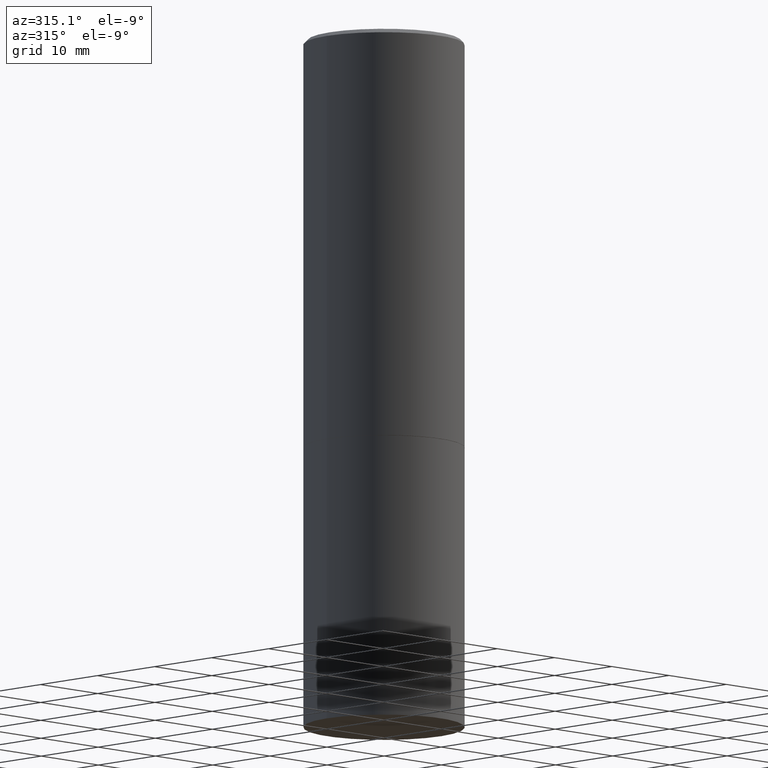
[diagram: clean part render]
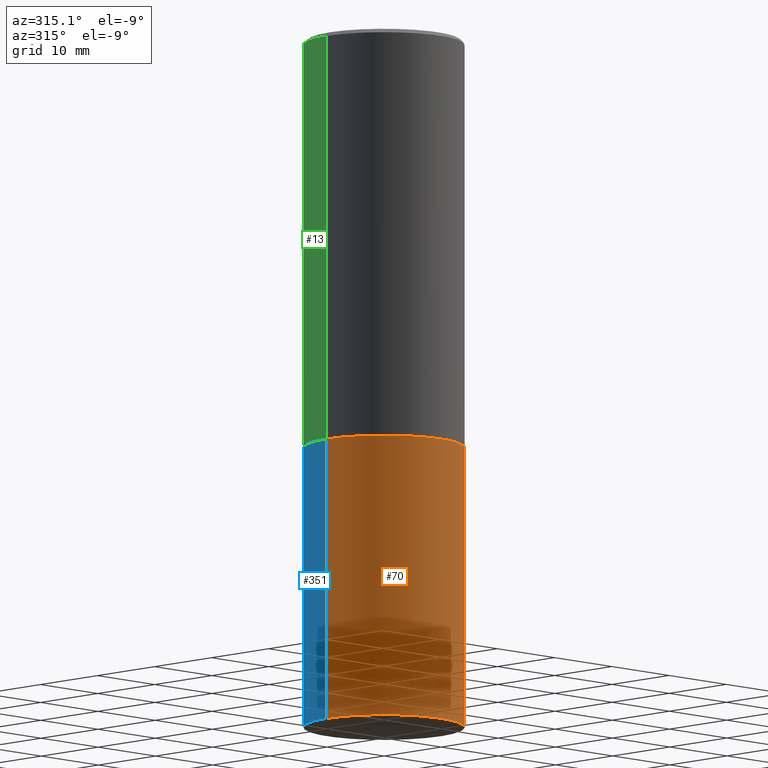
[diagram: same view with three faces highlighted in distinct colors, each labeled with its STEP entity id]
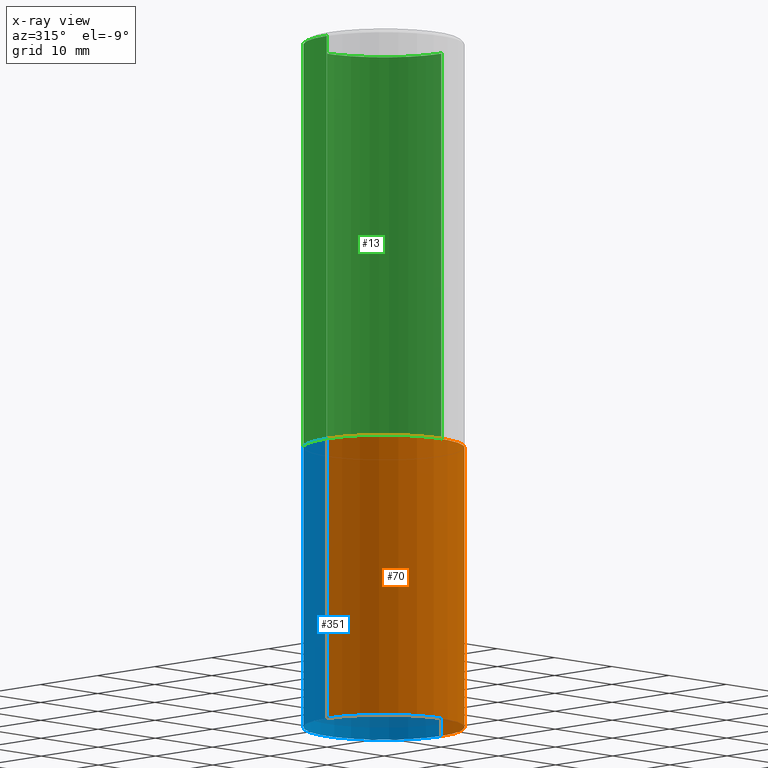
[diagram: x-ray of the same camera — body ghosted, the three highlighted faces saturated]
A machine part, auxiliary view with three faces highlighted in distinct colors.
The next image is the same camera in x-ray (body ghosted, the three faces saturated) — at least one of them is partly hidden behind the body in this view.
Their STEP definitions:

[orange] entity #70 — the highlighted cylindrical surface (partial cylindrical patch) has radius 10 mm, axis along (-0, 0, 1).
#1 = VERTEX_POINT ( 'NONE', #161 ) ;
#6 = DIRECTION ( 'NONE',  ( -2.445468806185136597E-29, 3.491481338843145583E-15, 1.000000000000000000 ) ) ;
#20 = CARTESIAN_POINT ( 'NONE',  ( -0.3937000000000000499, -6.618420123904681571E-15, -2.007800000000000473 ) ) ;
#26 = DIRECTION ( 'NONE',  ( 1.000000000000000000, -6.982962677686265133E-15, 0.000000000000000000 ) ) ;
#27 = AXIS2_PLACEMENT_3D ( 'NONE', #166, #110, #26 ) ;
#36 = ORIENTED_EDGE ( 'NONE', *, *, #187, .F. ) ;
#47 = CARTESIAN_POINT ( 'NONE',  ( 0.3937000000000000499, -2.749192406205083217E-15, 1.919750796630860172E-29 ) ) ;
#50 = VECTOR ( 'NONE', #194, 39.37007874015748143 ) ;
#70 = ADVANCED_FACE ( 'NONE', ( #312 ), #151, .T. ) ;
#73 = VERTEX_POINT ( 'NONE', #125 ) ;
#79 = CARTESIAN_POINT ( 'NONE',  ( 0.000000000000000000, 0.000000000000000000, 0.000000000000000000 ) ) ;
#86 = VERTEX_POINT ( 'NONE', #354 ) ;
#104 = ORIENTED_EDGE ( 'NONE', *, *, #359, .T. ) ;
#106 = EDGE_LOOP ( 'NONE', ( #36, #272, #104, #244 ) ) ;
#107 = CIRCLE ( 'NONE', #27, 0.3937000000000000499 ) ;
#110 = DIRECTION ( 'NONE',  ( -2.445468806185136597E-29, 3.491481338843145583E-15, 1.000000000000000000 ) ) ;
#125 = CARTESIAN_POINT ( 'NONE',  ( 0.3937000000000000499, -9.759388638334352204E-15, -2.007800000000000473 ) ) ;
#151 = CYLINDRICAL_SURFACE ( 'NONE', #349, 0.3937000000000000499 ) ;
#161 = CARTESIAN_POINT ( 'NONE',  ( 0.3937000000000000499, -1.457064992326020852E-14, -3.385800000000000143 ) ) ;
#166 = CARTESIAN_POINT ( 'NONE',  ( 4.910012269058518206E-29, -7.010196232129268988E-15, -2.007800000000000473 ) ) ;
#170 = LINE ( 'NONE', #47, #50 ) ;
#179 = CIRCLE ( 'NONE', #186, 0.3937000000000000499 ) ;
#182 = CARTESIAN_POINT ( 'NONE',  ( -0.3937000000000000499, 2.797406750687514786E-15, -1.936584745033356735E-29 ) ) ;
#186 = AXIS2_PLACEMENT_3D ( 'NONE', #220, #6, #346 ) ;
#187 = EDGE_CURVE ( 'NONE', #86, #211, #297, .T. ) ;
#194 = DIRECTION ( 'NONE',  ( -2.445468806185136877E-29, 3.491481338843145188E-15, 1.000000000000000000 ) ) ;
#196 = VECTOR ( 'NONE', #331, 39.37007874015748143 ) ;
#211 = VERTEX_POINT ( 'NONE', #20 ) ;
#220 = CARTESIAN_POINT ( 'NONE',  ( 8.279868283981636714E-29, -1.182145751705512373E-14, -3.385800000000000143 ) ) ;
#233 = DIRECTION ( 'NONE',  ( 1.000000000000000000, -6.982962677686265922E-15, 4.876176775795935793E-29 ) ) ;
#243 = EDGE_CURVE ( 'NONE', #86, #1, #179, .T. ) ;
#244 = ORIENTED_EDGE ( 'NONE', *, *, #290, .F. ) ;
#271 = DIRECTION ( 'NONE',  ( -2.445468806185136597E-29, 3.491481338843145583E-15, 1.000000000000000000 ) ) ;
#272 = ORIENTED_EDGE ( 'NONE', *, *, #243, .T. ) ;
#290 = EDGE_CURVE ( 'NONE', #211, #73, #107, .T. ) ;
#297 = LINE ( 'NONE', #182, #196 ) ;
#312 = FACE_OUTER_BOUND ( 'NONE', #106, .T. ) ;
#331 = DIRECTION ( 'NONE',  ( -2.445468806185136877E-29, 3.491481338843145188E-15, 1.000000000000000000 ) ) ;
#346 = DIRECTION ( 'NONE',  ( 1.000000000000000000, -6.982962677686267499E-15, 0.000000000000000000 ) ) ;
#349 = AXIS2_PLACEMENT_3D ( 'NONE', #79, #271, #233 ) ;
#354 = CARTESIAN_POINT ( 'NONE',  ( -0.3937000000000000499, -6.618420123904681571E-15, -3.385800000000000143 ) ) ;
#359 = EDGE_CURVE ( 'NONE', #1, #73, #170, .T. ) ;

[blue] entity #351 — the highlighted cylindrical surface (partial cylindrical patch) has radius 10 mm, axis along (-0, 0, 1).
#1 = VERTEX_POINT ( 'NONE', #161 ) ;
#5 = DIRECTION ( 'NONE',  ( 1.000000000000000000, -6.982962677686265133E-15, 0.000000000000000000 ) ) ;
#7 = EDGE_CURVE ( 'NONE', #73, #211, #43, .T. ) ;
#20 = CARTESIAN_POINT ( 'NONE',  ( -0.3937000000000000499, -6.618420123904681571E-15, -2.007800000000000473 ) ) ;
#42 = DIRECTION ( 'NONE',  ( -2.445468806185136597E-29, 3.491481338843145583E-15, 1.000000000000000000 ) ) ;
#43 = CIRCLE ( 'NONE', #291, 0.3937000000000000499 ) ;
#45 = FACE_OUTER_BOUND ( 'NONE', #95, .T. ) ;
#47 = CARTESIAN_POINT ( 'NONE',  ( 0.3937000000000000499, -2.749192406205083217E-15, 1.919750796630860172E-29 ) ) ;
#50 = VECTOR ( 'NONE', #194, 39.37007874015748143 ) ;
#56 = ORIENTED_EDGE ( 'NONE', *, *, #7, .F. ) ;
#64 = ORIENTED_EDGE ( 'NONE', *, *, #275, .T. ) ;
#71 = DIRECTION ( 'NONE',  ( 1.000000000000000000, -6.982962677686265922E-15, 4.876176775795935793E-29 ) ) ;
#73 = VERTEX_POINT ( 'NONE', #125 ) ;
#86 = VERTEX_POINT ( 'NONE', #354 ) ;
#95 = EDGE_LOOP ( 'NONE', ( #64, #143, #56, #156 ) ) ;
#125 = CARTESIAN_POINT ( 'NONE',  ( 0.3937000000000000499, -9.759388638334352204E-15, -2.007800000000000473 ) ) ;
#143 = ORIENTED_EDGE ( 'NONE', *, *, #187, .T. ) ;
#144 = DIRECTION ( 'NONE',  ( 1.000000000000000000, -6.982962677686267499E-15, 0.000000000000000000 ) ) ;
#156 = ORIENTED_EDGE ( 'NONE', *, *, #359, .F. ) ;
#161 = CARTESIAN_POINT ( 'NONE',  ( 0.3937000000000000499, -1.457064992326020852E-14, -3.385800000000000143 ) ) ;
#170 = LINE ( 'NONE', #47, #50 ) ;
#182 = CARTESIAN_POINT ( 'NONE',  ( -0.3937000000000000499, 2.797406750687514786E-15, -1.936584745033356735E-29 ) ) ;
#187 = EDGE_CURVE ( 'NONE', #86, #211, #297, .T. ) ;
#189 = CARTESIAN_POINT ( 'NONE',  ( 4.910012269058518206E-29, -7.010196232129268988E-15, -2.007800000000000473 ) ) ;
#191 = AXIS2_PLACEMENT_3D ( 'NONE', #325, #42, #71 ) ;
#193 = DIRECTION ( 'NONE',  ( -2.445468806185136597E-29, 3.491481338843145583E-15, 1.000000000000000000 ) ) ;
#194 = DIRECTION ( 'NONE',  ( -2.445468806185136877E-29, 3.491481338843145188E-15, 1.000000000000000000 ) ) ;
#195 = CYLINDRICAL_SURFACE ( 'NONE', #191, 0.3937000000000000499 ) ;
#196 = VECTOR ( 'NONE', #331, 39.37007874015748143 ) ;
#211 = VERTEX_POINT ( 'NONE', #20 ) ;
#275 = EDGE_CURVE ( 'NONE', #1, #86, #284, .T. ) ;
#276 = AXIS2_PLACEMENT_3D ( 'NONE', #348, #318, #144 ) ;
#284 = CIRCLE ( 'NONE', #276, 0.3937000000000000499 ) ;
#291 = AXIS2_PLACEMENT_3D ( 'NONE', #189, #193, #5 ) ;
#297 = LINE ( 'NONE', #182, #196 ) ;
#318 = DIRECTION ( 'NONE',  ( -2.445468806185136597E-29, 3.491481338843145583E-15, 1.000000000000000000 ) ) ;
#325 = CARTESIAN_POINT ( 'NONE',  ( 0.000000000000000000, 0.000000000000000000, 0.000000000000000000 ) ) ;
#331 = DIRECTION ( 'NONE',  ( -2.445468806185136877E-29, 3.491481338843145188E-15, 1.000000000000000000 ) ) ;
#348 = CARTESIAN_POINT ( 'NONE',  ( 8.279868283981636714E-29, -1.182145751705512373E-14, -3.385800000000000143 ) ) ;
#351 = ADVANCED_FACE ( 'NONE', ( #45 ), #195, .T. ) ;
#354 = CARTESIAN_POINT ( 'NONE',  ( -0.3937000000000000499, -6.618420123904681571E-15, -3.385800000000000143 ) ) ;
#359 = EDGE_CURVE ( 'NONE', #1, #73, #170, .T. ) ;

[green] entity #13 — the highlighted cylindrical surface (partial cylindrical patch) has radius 10 mm, axis along (-0, 0, 1).
#2 = EDGE_LOOP ( 'NONE', ( #29, #339, #289, #160 ) ) ;
#13 = ADVANCED_FACE ( 'NONE', ( #114 ), #320, .T. ) ;
#14 = DIRECTION ( 'NONE',  ( 1.000000000000000000, -6.982962677686266711E-15, 0.000000000000000000 ) ) ;
#29 = ORIENTED_EDGE ( 'NONE', *, *, #345, .T. ) ;
#53 = DIRECTION ( 'NONE',  ( -2.445468806185136877E-29, 3.491481338843145188E-15, 1.000000000000000000 ) ) ;
#54 = CARTESIAN_POINT ( 'NONE',  ( -0.3937000000000001609, -7.408604380961272890E-16, -2.006800000000000139 ) ) ;
#67 = AXIS2_PLACEMENT_3D ( 'NONE', #280, #216, #214 ) ;
#80 = CARTESIAN_POINT ( 'NONE',  ( 0.3936999999999998279, -2.770807688499514156E-15, -0.02000000000000009062 ) ) ;
#92 = VERTEX_POINT ( 'NONE', #80 ) ;
#114 = FACE_OUTER_BOUND ( 'NONE', #2, .T. ) ;
#121 = EDGE_CURVE ( 'NONE', #252, #92, #330, .T. ) ;
#122 = CARTESIAN_POINT ( 'NONE',  ( 0.3936999999999999389, -2.749192406205082822E-15, 1.919750796630859611E-29 ) ) ;
#138 = VERTEX_POINT ( 'NONE', #358 ) ;
#140 = CIRCLE ( 'NONE', #67, 0.3936999999999998279 ) ;
#158 = CARTESIAN_POINT ( 'NONE',  ( 0.3937000000000001054, -9.755897156995509197E-15, -2.006800000000000139 ) ) ;
#160 = ORIENTED_EDGE ( 'NONE', *, *, #121, .F. ) ;
#171 = DIRECTION ( 'NONE',  ( -2.445468806185136597E-29, 3.491481338843145583E-15, 1.000000000000000000 ) ) ;
#198 = VERTEX_POINT ( 'NONE', #54 ) ;
#205 = DIRECTION ( 'NONE',  ( -2.445468806185136877E-29, 3.491481338843145188E-15, 1.000000000000000000 ) ) ;
#207 = EDGE_CURVE ( 'NONE', #198, #138, #336, .T. ) ;
#214 = DIRECTION ( 'NONE',  ( 1.000000000000000000, -6.982962677686266711E-15, 0.000000000000000000 ) ) ;
#216 = DIRECTION ( 'NONE',  ( -2.445468806185136597E-29, 3.491481338843145583E-15, 1.000000000000000000 ) ) ;
#219 = CARTESIAN_POINT ( 'NONE',  ( 0.000000000000000000, 0.000000000000000000, 0.000000000000000000 ) ) ;
#223 = VECTOR ( 'NONE', #205, 39.37007874015748143 ) ;
#225 = VECTOR ( 'NONE', #53, 39.37007874015748143 ) ;
#236 = CARTESIAN_POINT ( 'NONE',  ( -0.3936999999999999389, 2.797406750687513998E-15, -1.936584745033356455E-29 ) ) ;
#252 = VERTEX_POINT ( 'NONE', #158 ) ;
#257 = EDGE_CURVE ( 'NONE', #92, #138, #140, .T. ) ;
#280 = CARTESIAN_POINT ( 'NONE',  ( 4.890937612370295054E-31, -6.982962677686322424E-17, -0.02000000000000009062 ) ) ;
#282 = DIRECTION ( 'NONE',  ( -2.445468806185136597E-29, 3.491481338843145583E-15, 1.000000000000000000 ) ) ;
#289 = ORIENTED_EDGE ( 'NONE', *, *, #257, .F. ) ;
#294 = AXIS2_PLACEMENT_3D ( 'NONE', #321, #171, #14 ) ;
#301 = AXIS2_PLACEMENT_3D ( 'NONE', #219, #282, #317 ) ;
#316 = CIRCLE ( 'NONE', #294, 0.3937000000000001054 ) ;
#317 = DIRECTION ( 'NONE',  ( 1.000000000000000000, -6.982962677686266711E-15, 4.876176775795935793E-29 ) ) ;
#320 = CYLINDRICAL_SURFACE ( 'NONE', #301, 0.3936999999999999389 ) ;
#321 = CARTESIAN_POINT ( 'NONE',  ( 4.907566800252332603E-29, -7.006704750790425192E-15, -2.006800000000000139 ) ) ;
#330 = LINE ( 'NONE', #122, #223 ) ;
#336 = LINE ( 'NONE', #236, #225 ) ;
#339 = ORIENTED_EDGE ( 'NONE', *, *, #207, .T. ) ;
#345 = EDGE_CURVE ( 'NONE', #252, #198, #316, .T. ) ;
#358 = CARTESIAN_POINT ( 'NONE',  ( -0.3936999999999998279, 2.679362779428218735E-15, -0.02000000000000009062 ) ) ;